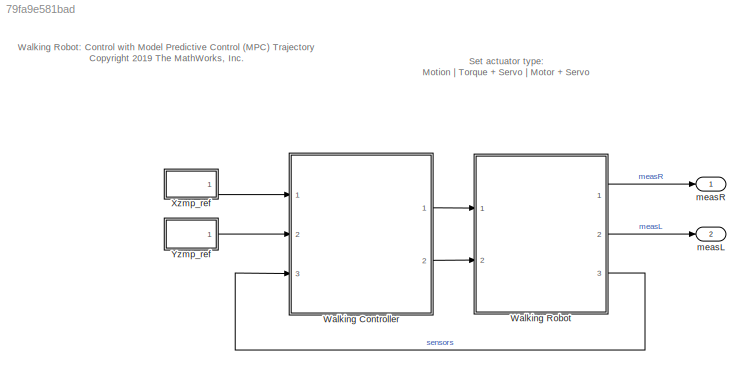
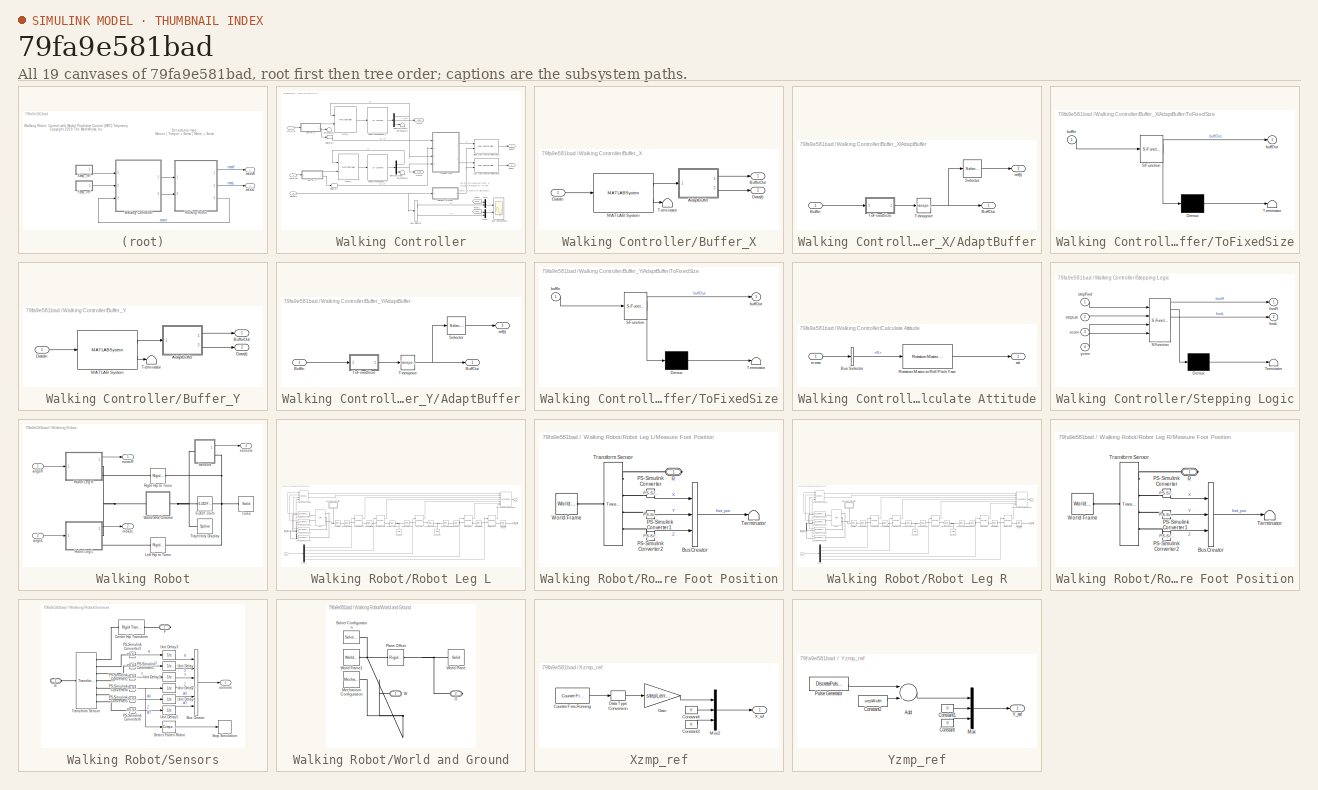
[diagram: thumbnail index - all 19 canvases of the model, root first then tree order]
MODEL slx_79fa9e581bad
KIND model
CONFIG AbsTol = auto
CONFIG EnableMultiTasking = on
CONFIG FixedStep = auto
CONFIG MaxStep = auto
CONFIG MinStep = auto
CONFIG PreLoadFcn = robotParameters3D\ndesignMPCWalkingPatternGen\n
CONFIG RelTol = 1e-2
CONFIG SampleTimeConstraint = Unconstrained
CONFIG Solver = ode15s
CONFIG SolverName = ode15s
CONFIG StartTime = 0.0
CONFIG StopTime = 15
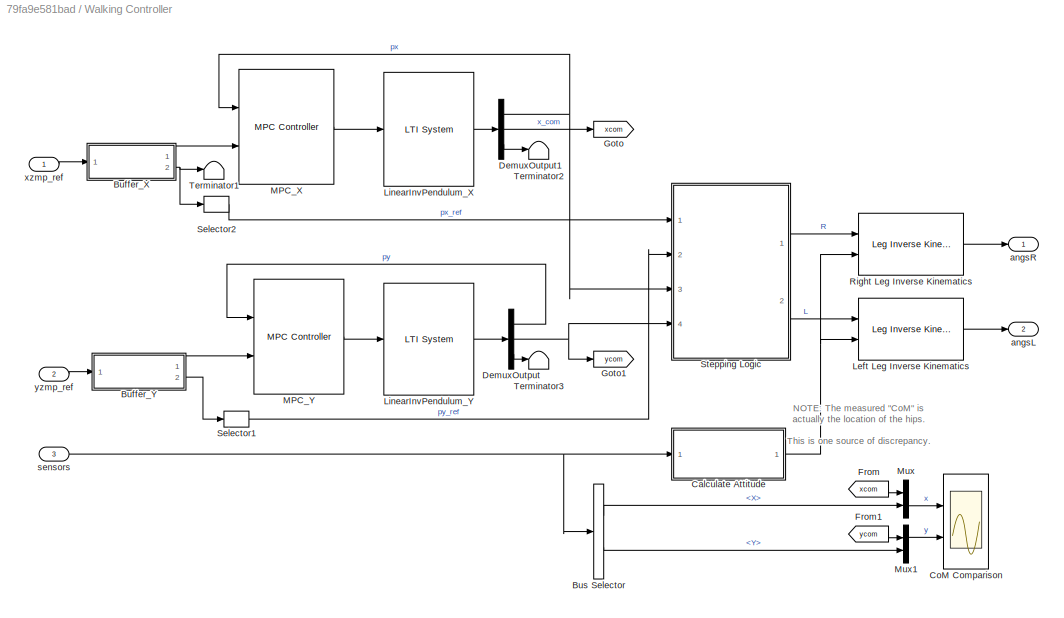
BLOCK [SubSystem] Walking Controller
  Ports = [3, 2]
  RequestExecContextInheritance = off
BLOCK [SubSystem] Walking Controller/Buffer_X
  Ports = [1, 2]
  RequestExecContextInheritance = off
BLOCK [SubSystem] Walking Controller/Buffer_X/AdaptBuffer
  Ports = [1, 2]
  RequestExecContextInheritance = off
BLOCK [Inport] Walking Controller/Buffer_X/AdaptBuffer/BuffIn
  IconDisplay = Port number
BLOCK [Outport] Walking Controller/Buffer_X/AdaptBuffer/BuffOut
  IconDisplay = Port number
BLOCK [Selector] Walking Controller/Buffer_X/AdaptBuffer/Selector
  IndexOptions = Index vector (dialog),Select all
  Indices = [1],1
  InputPortWidth = 3
  NumberOfDimensions = 2
  OutputSizes = 1,1
  Ports = [1, 1]
BLOCK [SubSystem] Walking Controller/Buffer_X/AdaptBuffer/ToFixedSize
  ErrorFcn = Stateflow.Translate.translate
  PermitHierarchicalResolution = ExplicitOnly
  Ports = [1, 1]
  RequestExecContextInheritance = off
  SFBlockType = MATLAB Function
  TreatAsAtomicUnit = on
BLOCK [Demux] Walking Controller/Buffer_X/AdaptBuffer/ToFixedSize/ Demux 
  Outputs = 1
  Ports = [1, 1]
BLOCK [S-Function] Walking Controller/Buffer_X/AdaptBuffer/ToFixedSize/ SFunction 
  EnableBusSupport = off
  FunctionName = sf_sfun
  Parameters = numStates,predictionHorizon
  PortCounts = [1 2]
  Ports = [1, 2]
  SFcnIsStateOwnerBlock = off
  SFunctionDeploymentMode = off
  Tag = Stateflow S-Function walkingRobot3DMPC 1
BLOCK [Terminator] Walking Controller/Buffer_X/AdaptBuffer/ToFixedSize/ Terminator 
BLOCK [Inport] Walking Controller/Buffer_X/AdaptBuffer/ToFixedSize/buffIn
  IconDisplay = Port number
BLOCK [Outport] Walking Controller/Buffer_X/AdaptBuffer/ToFixedSize/buffOut
  IconDisplay = Port number
BLOCK [Math] Walking Controller/Buffer_X/AdaptBuffer/Transpose
  Operator = transpose
  Ports = [1, 1]
BLOCK [Outport] Walking Controller/Buffer_X/AdaptBuffer/ref(t)
  IconDisplay = Port number
  Port = 2
BLOCK [Outport] Walking Controller/Buffer_X/BufferOut
  IconDisplay = Port number
BLOCK [Outport] Walking Controller/Buffer_X/Data(t)
  IconDisplay = Port number
  Port = 2
BLOCK [Inport] Walking Controller/Buffer_X/DataIn
  IconDisplay = Port number
BLOCK [MATLABSystem] Walking Controller/Buffer_X/MATLAB System
  BufferStartupFillupData = zeros(numOutputs,predictionHorizon)
  Capacity = predictionHorizon
  FillBufferAtStartup = on
  MaskDisplay = disp('FIFOBuffer');\nport_label('input',1,'dataIn');\nport_label('output',1,'buffer');\nport_label('output',2,'isFull');
  MaskType = FIFOBuffer
  NumStates = numOutputs
  Ports = [1, 2]
  SampleTime = Ts
  SimulateUsing = Code generation
  System = FIFOBuffer
BLOCK [Terminator] Walking Controller/Buffer_X/Terminator
BLOCK [SubSystem] Walking Controller/Buffer_Y
  Ports = [1, 2]
  RequestExecContextInheritance = off
BLOCK [SubSystem] Walking Controller/Buffer_Y/AdaptBuffer
  Ports = [1, 2]
  RequestExecContextInheritance = off
BLOCK [Inport] Walking Controller/Buffer_Y/AdaptBuffer/BuffIn
  IconDisplay = Port number
BLOCK [Outport] Walking Controller/Buffer_Y/AdaptBuffer/BuffOut
  IconDisplay = Port number
BLOCK [Selector] Walking Controller/Buffer_Y/AdaptBuffer/Selector
  IndexOptions = Index vector (dialog),Select all
  Indices = [1],1
  InputPortWidth = 3
  NumberOfDimensions = 2
  OutputSizes = 1,1
  Ports = [1, 1]
BLOCK [SubSystem] Walking Controller/Buffer_Y/AdaptBuffer/ToFixedSize
  ErrorFcn = Stateflow.Translate.translate
  PermitHierarchicalResolution = ExplicitOnly
  Ports = [1, 1]
  RequestExecContextInheritance = off
  SFBlockType = MATLAB Function
  TreatAsAtomicUnit = on
BLOCK [Demux] Walking Controller/Buffer_Y/AdaptBuffer/ToFixedSize/ Demux 
  Outputs = 1
  Ports = [1, 1]
BLOCK [S-Function] Walking Controller/Buffer_Y/AdaptBuffer/ToFixedSize/ SFunction 
  EnableBusSupport = off
  FunctionName = sf_sfun
  Parameters = numStates,predictionHorizon
  PortCounts = [1 2]
  Ports = [1, 2]
  SFcnIsStateOwnerBlock = off
  SFunctionDeploymentMode = off
  Tag = Stateflow S-Function walkingRobot3DMPC 2
BLOCK [Terminator] Walking Controller/Buffer_Y/AdaptBuffer/ToFixedSize/ Terminator 
BLOCK [Inport] Walking Controller/Buffer_Y/AdaptBuffer/ToFixedSize/buffIn
  IconDisplay = Port number
BLOCK [Outport] Walking Controller/Buffer_Y/AdaptBuffer/ToFixedSize/buffOut
  IconDisplay = Port number
BLOCK [Math] Walking Controller/Buffer_Y/AdaptBuffer/Transpose
  Operator = transpose
  Ports = [1, 1]
BLOCK [Outport] Walking Controller/Buffer_Y/AdaptBuffer/ref(t)
  IconDisplay = Port number
  Port = 2
BLOCK [Outport] Walking Controller/Buffer_Y/BufferOut
  IconDisplay = Port number
BLOCK [Outport] Walking Controller/Buffer_Y/Data(t)
  IconDisplay = Port number
  Port = 2
BLOCK [Inport] Walking Controller/Buffer_Y/DataIn
  IconDisplay = Port number
BLOCK [MATLABSystem] Walking Controller/Buffer_Y/MATLAB System
  BufferStartupFillupData = zeros(numOutputs,predictionHorizon)
  Capacity = predictionHorizon
  FillBufferAtStartup = on
  MaskDisplay = disp('FIFOBuffer');\nport_label('input',1,'dataIn');\nport_label('output',1,'buffer');\nport_label('output',2,'isFull');
  MaskType = FIFOBuffer
  NumStates = numOutputs
  Ports = [1, 2]
  SampleTime = Ts
  SimulateUsing = Code generation
  System = FIFOBuffer
BLOCK [Terminator] Walking Controller/Buffer_Y/Terminator
BLOCK [BusSelector] Walking Controller/Bus Selector
  OutputAsBus = off
  OutputSignals = X,Y
  Ports = [1, 2]
BLOCK [SubSystem] Walking Controller/Calculate Attitude
  Ports = [1, 1]
  RequestExecContextInheritance = off
BLOCK [BusSelector] Walking Controller/Calculate Attitude/Bus Selector
  OutputAsBus = off
  OutputSignals = R
  Ports = [1, 1]
BLOCK [Reference] Walking Controller/Calculate Attitude/Rotation Matrix to Roll Pitch Yaw  REF=walkingRobotUtils/Rotation Matrix to 
Roll Pitch Yaw
  Ports = [1, 1]
  SourceBlock = walkingRobotUtils/Rotation Matrix to \nRoll Pitch Yaw
  SourceProductBaseCode = SL
  SourceProductName = Simulink
  SourceType = SubSystem
BLOCK [Outport] Walking Controller/Calculate Attitude/att
  IconDisplay = Port number
BLOCK [Inport] Walking Controller/Calculate Attitude/meas
  IconDisplay = Port number
BLOCK [Scope] Walking Controller/CoM Comparison
  Floating = off
  NumInputPorts = 2
  Ports = [2]
  ScopeSpecificationString = Simulink.scopes.TimeScopeBlockCfg('CurrentConfiguration', extmgr.ConfigurationSet(extmgr.Configuration('Core','General UI',true),extmgr.Configuration('Core','Source UI',true),extmgr.Configuration('Sources','WiredSimulink',true,'DataLoggingVariableName','ScopeData1'),extmgr.Configuration('Visuals','Time Domain',true,'SerializedDisplays',{struct('MinYLimReal','-0.14686','MaxYLimReal','1.28409','YLab...<+2112ch>
BLOCK [Demux] Walking Controller/DemuxOutput
  DisplayOption = bar
  Outputs = 3
  Ports = [1, 3]
BLOCK [Demux] Walking Controller/DemuxOutput1
  DisplayOption = bar
  Outputs = 3
  Ports = [1, 3]
BLOCK [From] Walking Controller/From
  GotoTag = xcom
BLOCK [From] Walking Controller/From1
  GotoTag = ycom
BLOCK [Goto] Walking Controller/Goto
  GotoTag = xcom
BLOCK [Goto] Walking Controller/Goto1
  GotoTag = ycom
BLOCK [Reference] Walking Controller/Left Leg Inverse Kinematics  REF=walkingRobotUtils/Leg Inverse Kinematics
  Ports = [2, 1]
  SourceBlock = walkingRobotUtils/Leg Inverse Kinematics
  SourceType = SubSystem
BLOCK [Reference] Walking Controller/LinearInvPendulum_X  REF=cstblocks/LTI System
  Ports = [1, 1]
  SourceBlock = cstblocks/LTI System
  SourceProductBaseCode = CT
  SourceProductName = Control System Toolbox
  SourceType = LTI Block
BLOCK [Reference] Walking Controller/LinearInvPendulum_Y  REF=cstblocks/LTI System
  Ports = [1, 1]
  SourceBlock = cstblocks/LTI System
  SourceProductBaseCode = CT
  SourceProductName = Control System Toolbox
  SourceType = LTI Block
BLOCK [Reference] Walking Controller/MPC_X  REF=mpclib/MPC Controller  (lib defined in mdl_ae329e0e0455)
  Ports = [2, 1]
  SCDEnableBlockLinearizationSpecification = on
  SourceBlock = mpclib/MPC Controller
  SourceProductBaseCode = MP
  SourceProductName = Model Predictive Control Toolbox
  SourceType = MPC
BLOCK [Reference] Walking Controller/MPC_Y  REF=mpclib/MPC Controller  (lib defined in mdl_ae329e0e0455)
  Ports = [2, 1]
  SCDEnableBlockLinearizationSpecification = on
  SourceBlock = mpclib/MPC Controller
  SourceProductBaseCode = MP
  SourceProductName = Model Predictive Control Toolbox
  SourceType = MPC
BLOCK [Mux] Walking Controller/Mux
  DisplayOption = bar
  Inputs = 2
  Ports = [2, 1]
BLOCK [Mux] Walking Controller/Mux1
  DisplayOption = bar
  Inputs = 2
  Ports = [2, 1]
BLOCK [Reference] Walking Controller/Right Leg Inverse Kinematics  REF=walkingRobotUtils/Leg Inverse Kinematics
  Ports = [2, 1]
  SourceBlock = walkingRobotUtils/Leg Inverse Kinematics
  SourceType = SubSystem
BLOCK [Selector] Walking Controller/Selector1
  IndexOptions = Index vector (dialog)
  Indices = [1]
  InputPortWidth = 3
  OutputSizes = 1
  Ports = [1, 1]
BLOCK [Selector] Walking Controller/Selector2
  IndexOptions = Index vector (dialog)
  Indices = [1]
  InputPortWidth = 3
  OutputSizes = 1
  Ports = [1, 1]
BLOCK [SubSystem] Walking Controller/Stepping Logic
  ErrorFcn = Stateflow.Translate.translate
  PermitHierarchicalResolution = ExplicitOnly
  Ports = [4, 2]
  RequestExecContextInheritance = off
  SFBlockType = Chart
  TreatAsAtomicUnit = on
BLOCK [Demux] Walking Controller/Stepping Logic/ Demux 
  Outputs = 1
  Ports = [1, 1]
BLOCK [S-Function] Walking Controller/Stepping Logic/ SFunction 
  EnableBusSupport = off
  FunctionName = sf_sfun
  Parameters = h,stepTime,torso_y
  PortCounts = [4 3]
  Ports = [4, 3]
  SFcnIsStateOwnerBlock = off
  SFunctionDeploymentMode = off
  Tag = Stateflow S-Function walkingRobot3DMPC 3
BLOCK [Terminator] Walking Controller/Stepping Logic/ Terminator 
BLOCK [Outport] Walking Controller/Stepping Logic/footL
  IconDisplay = Port number
  Port = 2
BLOCK [Outport] Walking Controller/Stepping Logic/footR
  IconDisplay = Port number
BLOCK [Inport] Walking Controller/Stepping Logic/stepFwd
  IconDisplay = Port number
BLOCK [Inport] Walking Controller/Stepping Logic/stepLat
  IconDisplay = Port number
  Port = 2
BLOCK [Inport] Walking Controller/Stepping Logic/xcom
  IconDisplay = Port number
  Port = 3
BLOCK [Inport] Walking Controller/Stepping Logic/ycom
  IconDisplay = Port number
  Port = 4
BLOCK [Terminator] Walking Controller/Terminator1
BLOCK [Terminator] Walking Controller/Terminator2
BLOCK [Terminator] Walking Controller/Terminator3
BLOCK [Outport] Walking Controller/angsL
  IconDisplay = Port number
  Port = 2
BLOCK [Outport] Walking Controller/angsR
  IconDisplay = Port number
BLOCK [Inport] Walking Controller/sensors
  IconDisplay = Port number
  Port = 3
BLOCK [Inport] Walking Controller/xzmp_ref
  IconDisplay = Port number
BLOCK [Inport] Walking Controller/yzmp_ref
  IconDisplay = Port number
  Port = 2
BLOCK [SubSystem] Walking Robot
  Ports = [2, 3]
  RequestExecContextInheritance = off
BLOCK [Reference] Walking Robot/6-DOF Joint  REF=sm_lib/Joints/6-DOF Joint
  Ports = [0, 0, 0, 0, 0, 1, 1]
  SourceBlock = sm_lib/Joints/6-DOF Joint
  SourceProductBaseCode = MS
  SourceProductName = Simscape Multibody
  SourceType = 6-DOF Joint
BLOCK [Reference] Walking Robot/Left Hip to Torso  REF=sm_lib/Frames and
Transforms/Rigid
Transform
  Ports = [0, 0, 0, 0, 0, 1, 1]
  SourceBlock = sm_lib/Frames and\nTransforms/Rigid\nTransform
  SourceProductBaseCode = MS
  SourceProductName = Simscape Multibody
  SourceType = Rigid\nTransform
BLOCK [Reference] Walking Robot/Right Hip to Torso  REF=sm_lib/Frames and
Transforms/Rigid
Transform
  Ports = [0, 0, 0, 0, 0, 1, 1]
  SourceBlock = sm_lib/Frames and\nTransforms/Rigid\nTransform
  SourceProductBaseCode = MS
  SourceProductName = Simscape Multibody
  SourceType = Rigid\nTransform
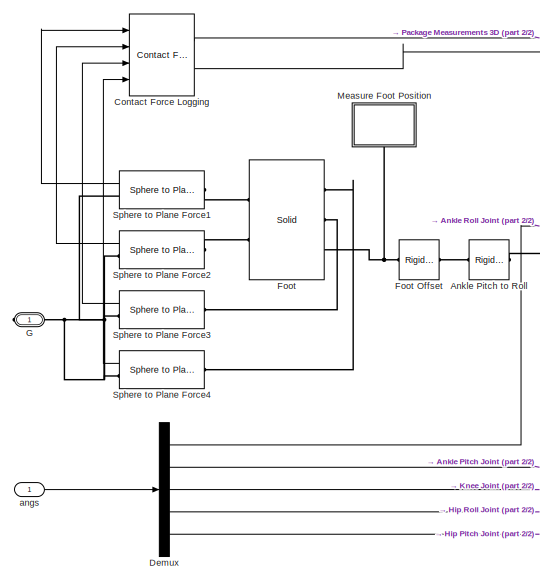
[diagram: Walking Robot/Robot Leg L - part 1/2, left side, full height]
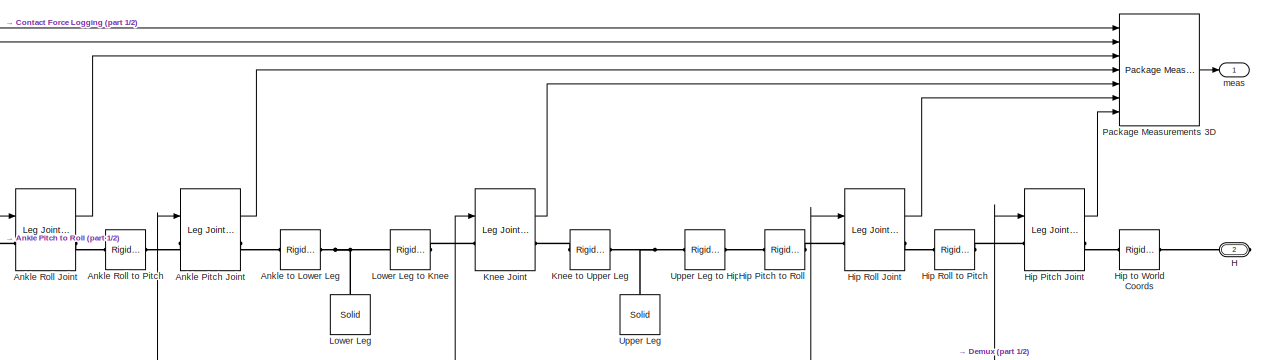
[diagram: Walking Robot/Robot Leg L - part 2/2, central region]
BLOCK [SubSystem] Walking Robot/Robot Leg L
  Ports = [1, 1, 0, 0, 0, 0, 2]
  RequestExecContextInheritance = off
BLOCK [Reference] Walking Robot/Robot Leg L/Ankle Pitch Joint  REF=walkingRobotUtils/Leg Joint Actuator
  Ports = [1, 1, 0, 0, 0, 1, 1]
  SourceBlock = walkingRobotUtils/Leg Joint Actuator
  SourceType = Leg Joint Actuator
BLOCK [Reference] Walking Robot/Robot Leg L/Ankle Pitch to Roll  REF=sm_lib/Frames and
Transforms/Rigid
Transform
  Ports = [0, 0, 0, 0, 0, 1, 1]
  SourceBlock = sm_lib/Frames and\nTransforms/Rigid\nTransform
  SourceProductBaseCode = MS
  SourceProductName = Simscape Multibody
  SourceType = Rigid\nTransform
BLOCK [Reference] Walking Robot/Robot Leg L/Ankle Roll Joint  REF=walkingRobotUtils/Leg Joint Actuator
  Ports = [1, 1, 0, 0, 0, 1, 1]
  SourceBlock = walkingRobotUtils/Leg Joint Actuator
  SourceType = Leg Joint Actuator
BLOCK [Reference] Walking Robot/Robot Leg L/Ankle Roll to Pitch  REF=sm_lib/Frames and
Transforms/Rigid
Transform
  Ports = [0, 0, 0, 0, 0, 1, 1]
  SourceBlock = sm_lib/Frames and\nTransforms/Rigid\nTransform
  SourceProductBaseCode = MS
  SourceProductName = Simscape Multibody
  SourceType = Rigid\nTransform
BLOCK [Reference] Walking Robot/Robot Leg L/Ankle to Lower Leg  REF=sm_lib/Frames and
Transforms/Rigid
Transform
  Ports = [0, 0, 0, 0, 0, 1, 1]
  SourceBlock = sm_lib/Frames and\nTransforms/Rigid\nTransform
  SourceProductBaseCode = MS
  SourceProductName = Simscape Multibody
  SourceType = Rigid\nTransform
BLOCK [Reference] Walking Robot/Robot Leg L/Contact Force Logging  REF=walkingRobotUtils/Contact Force Logging
  Ports = [4, 2]
  SourceBlock = walkingRobotUtils/Contact Force Logging
  SourceType = SubSystem
BLOCK [Demux] Walking Robot/Robot Leg L/Demux
  DisplayOption = bar
  Outputs = 5
  Ports = [1, 5]
BLOCK [Reference] Walking Robot/Robot Leg L/Foot  REF=sm_lib/Body Elements/Solid
  Ports = [0, 0, 0, 0, 0, 3, 2]
  SourceBlock = sm_lib/Body Elements/Solid
  SourceProductBaseCode = MS
  SourceProductName = Simscape Multibody
  SourceType = Solid
BLOCK [Reference] Walking Robot/Robot Leg L/Foot Offset  REF=sm_lib/Frames and
Transforms/Rigid
Transform
  Ports = [0, 0, 0, 0, 0, 1, 1]
  SourceBlock = sm_lib/Frames and\nTransforms/Rigid\nTransform
  SourceProductBaseCode = MS
  SourceProductName = Simscape Multibody
  SourceType = Rigid\nTransform
BLOCK [PMIOPort] Walking Robot/Robot Leg L/G
  Side = Right
BLOCK [PMIOPort] Walking Robot/Robot Leg L/H
  Port = 2
  Side = Right
BLOCK [Reference] Walking Robot/Robot Leg L/Hip Pitch Joint  REF=walkingRobotUtils/Leg Joint Actuator
  Ports = [1, 1, 0, 0, 0, 1, 1]
  SourceBlock = walkingRobotUtils/Leg Joint Actuator
  SourceType = Leg Joint Actuator
BLOCK [Reference] Walking Robot/Robot Leg L/Hip Pitch to Roll  REF=sm_lib/Frames and
Transforms/Rigid
Transform
  Ports = [0, 0, 0, 0, 0, 1, 1]
  SourceBlock = sm_lib/Frames and\nTransforms/Rigid\nTransform
  SourceProductBaseCode = MS
  SourceProductName = Simscape Multibody
  SourceType = Rigid\nTransform
BLOCK [Reference] Walking Robot/Robot Leg L/Hip Roll Joint  REF=walkingRobotUtils/Leg Joint Actuator
  Ports = [1, 1, 0, 0, 0, 1, 1]
  SourceBlock = walkingRobotUtils/Leg Joint Actuator
  SourceType = Leg Joint Actuator
BLOCK [Reference] Walking Robot/Robot Leg L/Hip Roll to Pitch  REF=sm_lib/Frames and
Transforms/Rigid
Transform
  Ports = [0, 0, 0, 0, 0, 1, 1]
  SourceBlock = sm_lib/Frames and\nTransforms/Rigid\nTransform
  SourceProductBaseCode = MS
  SourceProductName = Simscape Multibody
  SourceType = Rigid\nTransform
BLOCK [Reference] Walking Robot/Robot Leg L/Hip to World Coords  REF=sm_lib/Frames and
Transforms/Rigid
Transform
  Ports = [0, 0, 0, 0, 0, 1, 1]
  SourceBlock = sm_lib/Frames and\nTransforms/Rigid\nTransform
  SourceProductBaseCode = MS
  SourceProductName = Simscape Multibody
  SourceType = Rigid\nTransform
BLOCK [Reference] Walking Robot/Robot Leg L/Knee Joint  REF=walkingRobotUtils/Leg Joint Actuator
  Ports = [1, 1, 0, 0, 0, 1, 1]
  SourceBlock = walkingRobotUtils/Leg Joint Actuator
  SourceType = Leg Joint Actuator
BLOCK [Reference] Walking Robot/Robot Leg L/Knee to Upper Leg  REF=sm_lib/Frames and
Transforms/Rigid
Transform
  Ports = [0, 0, 0, 0, 0, 1, 1]
  SourceBlock = sm_lib/Frames and\nTransforms/Rigid\nTransform
  SourceProductBaseCode = MS
  SourceProductName = Simscape Multibody
  SourceType = Rigid\nTransform
BLOCK [Reference] Walking Robot/Robot Leg L/Lower Leg  REF=sm_lib/Body Elements/Solid
  Ports = [0, 0, 0, 0, 0, 0, 1]
  SourceBlock = sm_lib/Body Elements/Solid
  SourceProductBaseCode = MS
  SourceProductName = Simscape Multibody
  SourceType = Solid
BLOCK [Reference] Walking Robot/Robot Leg L/Lower Leg to Knee  REF=sm_lib/Frames and
Transforms/Rigid
Transform
  Ports = [0, 0, 0, 0, 0, 1, 1]
  SourceBlock = sm_lib/Frames and\nTransforms/Rigid\nTransform
  SourceProductBaseCode = MS
  SourceProductName = Simscape Multibody
  SourceType = Rigid\nTransform
BLOCK [SubSystem] Walking Robot/Robot Leg L/Measure Foot Position
  Ports = [0, 0, 0, 0, 0, 0, 1]
  RequestExecContextInheritance = off
BLOCK [BusCreator] Walking Robot/Robot Leg L/Measure Foot Position/Bus Creator
  DisplayOption = bar
  InheritFromInputs = on
  Inputs = 3
  Ports = [3, 1]
BLOCK [Reference] Walking Robot/Robot Leg L/Measure Foot Position/PS-Simulink Converter  REF=nesl_utility/PS-Simulink
Converter
  Ports = [0, 1, 0, 0, 0, 1]
  SourceBlock = nesl_utility/PS-Simulink\nConverter
  SourceProductBaseCode = SS
  SourceProductName = Simscape
  SourceType = PS-Simulink\nConverter
BLOCK [Reference] Walking Robot/Robot Leg L/Measure Foot Position/PS-Simulink Converter1  REF=nesl_utility/PS-Simulink
Converter
  Ports = [0, 1, 0, 0, 0, 1]
  SourceBlock = nesl_utility/PS-Simulink\nConverter
  SourceProductBaseCode = SS
  SourceProductName = Simscape
  SourceType = PS-Simulink\nConverter
BLOCK [Reference] Walking Robot/Robot Leg L/Measure Foot Position/PS-Simulink Converter2  REF=nesl_utility/PS-Simulink
Converter
  Ports = [0, 1, 0, 0, 0, 1]
  SourceBlock = nesl_utility/PS-Simulink\nConverter
  SourceProductBaseCode = SS
  SourceProductName = Simscape
  SourceType = PS-Simulink\nConverter
BLOCK [PMIOPort] Walking Robot/Robot Leg L/Measure Foot Position/R
  Side = Right
BLOCK [Terminator] Walking Robot/Robot Leg L/Measure Foot Position/Terminator
BLOCK [Reference] Walking Robot/Robot Leg L/Measure Foot Position/Transform Sensor  REF=sm_lib/Frames and
Transforms/Transform
Sensor
  Ports = [0, 0, 0, 0, 0, 1, 4]
  SourceBlock = sm_lib/Frames and\nTransforms/Transform\nSensor
  SourceProductBaseCode = MS
  SourceProductName = Simscape Multibody
  SourceType = Transform\nSensor
BLOCK [Reference] Walking Robot/Robot Leg L/Measure Foot Position/World Frame  REF=sm_lib/Frames and
Transforms/World Frame
  Ports = [0, 0, 0, 0, 0, 0, 1]
  SourceBlock = sm_lib/Frames and\nTransforms/World Frame
  SourceProductBaseCode = MS
  SourceProductName = Simscape Multibody
  SourceType = World Frame
BLOCK [Reference] Walking Robot/Robot Leg L/Package Measurements 3D  REF=walkingRobotUtils/Package
Measurements 3D
  Ports = [7, 1]
  SourceBlock = walkingRobotUtils/Package\nMeasurements 3D
  SourceType = SubSystem
BLOCK [Reference] Walking Robot/Robot Leg L/Sphere to Plane Force1  REF=Contact_Forces_Lib/3D/Sphere to Plane Force
  Ports = [0, 1, 0, 0, 0, 1, 1]
  SourceBlock = Contact_Forces_Lib/3D/Sphere to Plane Force
  SourceProductName = Simscape Multibody Contact Forces Library
  SourceType = Sphere to Plane Force
BLOCK [Reference] Walking Robot/Robot Leg L/Sphere to Plane Force2  REF=Contact_Forces_Lib/3D/Sphere to Plane Force
  Ports = [0, 1, 0, 0, 0, 1, 1]
  SourceBlock = Contact_Forces_Lib/3D/Sphere to Plane Force
  SourceProductName = Simscape Multibody Contact Forces Library
  SourceType = Sphere to Plane Force
BLOCK [Reference] Walking Robot/Robot Leg L/Sphere to Plane Force3  REF=Contact_Forces_Lib/3D/Sphere to Plane Force
  Ports = [0, 1, 0, 0, 0, 1, 1]
  SourceBlock = Contact_Forces_Lib/3D/Sphere to Plane Force
  SourceProductName = Simscape Multibody Contact Forces Library
  SourceType = Sphere to Plane Force
BLOCK [Reference] Walking Robot/Robot Leg L/Sphere to Plane Force4  REF=Contact_Forces_Lib/3D/Sphere to Plane Force
  Ports = [0, 1, 0, 0, 0, 1, 1]
  SourceBlock = Contact_Forces_Lib/3D/Sphere to Plane Force
  SourceProductName = Simscape Multibody Contact Forces Library
  SourceType = Sphere to Plane Force
BLOCK [Reference] Walking Robot/Robot Leg L/Upper Leg  REF=sm_lib/Body Elements/Solid
  Ports = [0, 0, 0, 0, 0, 0, 1]
  SourceBlock = sm_lib/Body Elements/Solid
  SourceProductBaseCode = MS
  SourceProductName = Simscape Multibody
  SourceType = Solid
BLOCK [Reference] Walking Robot/Robot Leg L/Upper Leg to Hip  REF=sm_lib/Frames and
Transforms/Rigid
Transform
  Ports = [0, 0, 0, 0, 0, 1, 1]
  SourceBlock = sm_lib/Frames and\nTransforms/Rigid\nTransform
  SourceProductBaseCode = MS
  SourceProductName = Simscape Multibody
  SourceType = Rigid\nTransform
BLOCK [Inport] Walking Robot/Robot Leg L/angs
  IconDisplay = Port number
BLOCK [Outport] Walking Robot/Robot Leg L/meas
  IconDisplay = Port number
BLOCK [SubSystem] Walking Robot/Robot Leg R
  Ports = [1, 1, 0, 0, 0, 0, 2]
  RequestExecContextInheritance = off
BLOCK [Reference] Walking Robot/Robot Leg R/Ankle Pitch Joint  REF=walkingRobotUtils/Leg Joint Actuator
  Ports = [1, 1, 0, 0, 0, 1, 1]
  SourceBlock = walkingRobotUtils/Leg Joint Actuator
  SourceType = Leg Joint Actuator
BLOCK [Reference] Walking Robot/Robot Leg R/Ankle Pitch to Roll  REF=sm_lib/Frames and
Transforms/Rigid
Transform
  Ports = [0, 0, 0, 0, 0, 1, 1]
  SourceBlock = sm_lib/Frames and\nTransforms/Rigid\nTransform
  SourceProductBaseCode = MS
  SourceProductName = Simscape Multibody
  SourceType = Rigid\nTransform
BLOCK [Reference] Walking Robot/Robot Leg R/Ankle Roll Joint  REF=walkingRobotUtils/Leg Joint Actuator
  Ports = [1, 1, 0, 0, 0, 1, 1]
  SourceBlock = walkingRobotUtils/Leg Joint Actuator
  SourceType = Leg Joint Actuator
BLOCK [Reference] Walking Robot/Robot Leg R/Ankle Roll to Pitch  REF=sm_lib/Frames and
Transforms/Rigid
Transform
  Ports = [0, 0, 0, 0, 0, 1, 1]
  SourceBlock = sm_lib/Frames and\nTransforms/Rigid\nTransform
  SourceProductBaseCode = MS
  SourceProductName = Simscape Multibody
  SourceType = Rigid\nTransform
BLOCK [Reference] Walking Robot/Robot Leg R/Ankle to Lower Leg  REF=sm_lib/Frames and
Transforms/Rigid
Transform
  Ports = [0, 0, 0, 0, 0, 1, 1]
  SourceBlock = sm_lib/Frames and\nTransforms/Rigid\nTransform
  SourceProductBaseCode = MS
  SourceProductName = Simscape Multibody
  SourceType = Rigid\nTransform
BLOCK [Reference] Walking Robot/Robot Leg R/Contact Force Logging  REF=walkingRobotUtils/Contact Force Logging
  Ports = [4, 2]
  SourceBlock = walkingRobotUtils/Contact Force Logging
  SourceType = SubSystem
BLOCK [Demux] Walking Robot/Robot Leg R/Demux
  DisplayOption = bar
  Outputs = 5
  Ports = [1, 5]
BLOCK [Reference] Walking Robot/Robot Leg R/Foot  REF=sm_lib/Body Elements/Solid
  Ports = [0, 0, 0, 0, 0, 3, 2]
  SourceBlock = sm_lib/Body Elements/Solid
  SourceProductBaseCode = MS
  SourceProductName = Simscape Multibody
  SourceType = Solid
BLOCK [Reference] Walking Robot/Robot Leg R/Foot Offset  REF=sm_lib/Frames and
Transforms/Rigid
Transform
  Ports = [0, 0, 0, 0, 0, 1, 1]
  SourceBlock = sm_lib/Frames and\nTransforms/Rigid\nTransform
  SourceProductBaseCode = MS
  SourceProductName = Simscape Multibody
  SourceType = Rigid\nTransform
BLOCK [PMIOPort] Walking Robot/Robot Leg R/G
  Side = Right
BLOCK [PMIOPort] Walking Robot/Robot Leg R/H
  Port = 2
  Side = Right
BLOCK [Reference] Walking Robot/Robot Leg R/Hip Pitch Joint  REF=walkingRobotUtils/Leg Joint Actuator
  Ports = [1, 1, 0, 0, 0, 1, 1]
  SourceBlock = walkingRobotUtils/Leg Joint Actuator
  SourceType = Leg Joint Actuator
BLOCK [Reference] Walking Robot/Robot Leg R/Hip Pitch to Roll  REF=sm_lib/Frames and
Transforms/Rigid
Transform
  Ports = [0, 0, 0, 0, 0, 1, 1]
  SourceBlock = sm_lib/Frames and\nTransforms/Rigid\nTransform
  SourceProductBaseCode = MS
  SourceProductName = Simscape Multibody
  SourceType = Rigid\nTransform
BLOCK [Reference] Walking Robot/Robot Leg R/Hip Roll Joint  REF=walkingRobotUtils/Leg Joint Actuator
  Ports = [1, 1, 0, 0, 0, 1, 1]
  SourceBlock = walkingRobotUtils/Leg Joint Actuator
  SourceType = Leg Joint Actuator
BLOCK [Reference] Walking Robot/Robot Leg R/Hip Roll to Pitch  REF=sm_lib/Frames and
Transforms/Rigid
Transform
  Ports = [0, 0, 0, 0, 0, 1, 1]
  SourceBlock = sm_lib/Frames and\nTransforms/Rigid\nTransform
  SourceProductBaseCode = MS
  SourceProductName = Simscape Multibody
  SourceType = Rigid\nTransform
BLOCK [Reference] Walking Robot/Robot Leg R/Hip to World Coords  REF=sm_lib/Frames and
Transforms/Rigid
Transform
  Ports = [0, 0, 0, 0, 0, 1, 1]
  SourceBlock = sm_lib/Frames and\nTransforms/Rigid\nTransform
  SourceProductBaseCode = MS
  SourceProductName = Simscape Multibody
  SourceType = Rigid\nTransform
BLOCK [Reference] Walking Robot/Robot Leg R/Knee Joint  REF=walkingRobotUtils/Leg Joint Actuator
  Ports = [1, 1, 0, 0, 0, 1, 1]
  SourceBlock = walkingRobotUtils/Leg Joint Actuator
  SourceType = Leg Joint Actuator
BLOCK [Reference] Walking Robot/Robot Leg R/Knee to Upper Leg  REF=sm_lib/Frames and
Transforms/Rigid
Transform
  Ports = [0, 0, 0, 0, 0, 1, 1]
  SourceBlock = sm_lib/Frames and\nTransforms/Rigid\nTransform
  SourceProductBaseCode = MS
  SourceProductName = Simscape Multibody
  SourceType = Rigid\nTransform
BLOCK [Reference] Walking Robot/Robot Leg R/Lower Leg  REF=sm_lib/Body Elements/Solid
  Ports = [0, 0, 0, 0, 0, 0, 1]
  SourceBlock = sm_lib/Body Elements/Solid
  SourceProductBaseCode = MS
  SourceProductName = Simscape Multibody
  SourceType = Solid
BLOCK [Reference] Walking Robot/Robot Leg R/Lower Leg to Knee  REF=sm_lib/Frames and
Transforms/Rigid
Transform
  Ports = [0, 0, 0, 0, 0, 1, 1]
  SourceBlock = sm_lib/Frames and\nTransforms/Rigid\nTransform
  SourceProductBaseCode = MS
  SourceProductName = Simscape Multibody
  SourceType = Rigid\nTransform
BLOCK [SubSystem] Walking Robot/Robot Leg R/Measure Foot Position
  Ports = [0, 0, 0, 0, 0, 0, 1]
  RequestExecContextInheritance = off
BLOCK [BusCreator] Walking Robot/Robot Leg R/Measure Foot Position/Bus Creator
  DisplayOption = bar
  InheritFromInputs = on
  Inputs = 3
  Ports = [3, 1]
BLOCK [Reference] Walking Robot/Robot Leg R/Measure Foot Position/PS-Simulink Converter  REF=nesl_utility/PS-Simulink
Converter
  Ports = [0, 1, 0, 0, 0, 1]
  SourceBlock = nesl_utility/PS-Simulink\nConverter
  SourceProductBaseCode = SS
  SourceProductName = Simscape
  SourceType = PS-Simulink\nConverter
BLOCK [Reference] Walking Robot/Robot Leg R/Measure Foot Position/PS-Simulink Converter1  REF=nesl_utility/PS-Simulink
Converter
  Ports = [0, 1, 0, 0, 0, 1]
  SourceBlock = nesl_utility/PS-Simulink\nConverter
  SourceProductBaseCode = SS
  SourceProductName = Simscape
  SourceType = PS-Simulink\nConverter
BLOCK [Reference] Walking Robot/Robot Leg R/Measure Foot Position/PS-Simulink Converter2  REF=nesl_utility/PS-Simulink
Converter
  Ports = [0, 1, 0, 0, 0, 1]
  SourceBlock = nesl_utility/PS-Simulink\nConverter
  SourceProductBaseCode = SS
  SourceProductName = Simscape
  SourceType = PS-Simulink\nConverter
BLOCK [PMIOPort] Walking Robot/Robot Leg R/Measure Foot Position/R
  Side = Right
BLOCK [Terminator] Walking Robot/Robot Leg R/Measure Foot Position/Terminator
BLOCK [Reference] Walking Robot/Robot Leg R/Measure Foot Position/Transform Sensor  REF=sm_lib/Frames and
Transforms/Transform
Sensor
  Ports = [0, 0, 0, 0, 0, 1, 4]
  SourceBlock = sm_lib/Frames and\nTransforms/Transform\nSensor
  SourceProductBaseCode = MS
  SourceProductName = Simscape Multibody
  SourceType = Transform\nSensor
BLOCK [Reference] Walking Robot/Robot Leg R/Measure Foot Position/World Frame  REF=sm_lib/Frames and
Transforms/World Frame
  Ports = [0, 0, 0, 0, 0, 0, 1]
  SourceBlock = sm_lib/Frames and\nTransforms/World Frame
  SourceProductBaseCode = MS
  SourceProductName = Simscape Multibody
  SourceType = World Frame
BLOCK [Reference] Walking Robot/Robot Leg R/Package Measurements 3D  REF=walkingRobotUtils/Package
Measurements 3D
  Ports = [7, 1]
  SourceBlock = walkingRobotUtils/Package\nMeasurements 3D
  SourceType = SubSystem
BLOCK [Reference] Walking Robot/Robot Leg R/Sphere to Plane Force1  REF=Contact_Forces_Lib/3D/Sphere to Plane Force
  Ports = [0, 1, 0, 0, 0, 1, 1]
  SourceBlock = Contact_Forces_Lib/3D/Sphere to Plane Force
  SourceProductName = Simscape Multibody Contact Forces Library
  SourceType = Sphere to Plane Force
BLOCK [Reference] Walking Robot/Robot Leg R/Sphere to Plane Force2  REF=Contact_Forces_Lib/3D/Sphere to Plane Force
  Ports = [0, 1, 0, 0, 0, 1, 1]
  SourceBlock = Contact_Forces_Lib/3D/Sphere to Plane Force
  SourceProductName = Simscape Multibody Contact Forces Library
  SourceType = Sphere to Plane Force
BLOCK [Reference] Walking Robot/Robot Leg R/Sphere to Plane Force3  REF=Contact_Forces_Lib/3D/Sphere to Plane Force
  Ports = [0, 1, 0, 0, 0, 1, 1]
  SourceBlock = Contact_Forces_Lib/3D/Sphere to Plane Force
  SourceProductName = Simscape Multibody Contact Forces Library
  SourceType = Sphere to Plane Force
BLOCK [Reference] Walking Robot/Robot Leg R/Sphere to Plane Force4  REF=Contact_Forces_Lib/3D/Sphere to Plane Force
  Ports = [0, 1, 0, 0, 0, 1, 1]
  SourceBlock = Contact_Forces_Lib/3D/Sphere to Plane Force
  SourceProductName = Simscape Multibody Contact Forces Library
  SourceType = Sphere to Plane Force
BLOCK [Reference] Walking Robot/Robot Leg R/Upper Leg  REF=sm_lib/Body Elements/Solid
  Ports = [0, 0, 0, 0, 0, 0, 1]
  SourceBlock = sm_lib/Body Elements/Solid
  SourceProductBaseCode = MS
  SourceProductName = Simscape Multibody
  SourceType = Solid
BLOCK [Reference] Walking Robot/Robot Leg R/Upper Leg to Hip  REF=sm_lib/Frames and
Transforms/Rigid
Transform
  Ports = [0, 0, 0, 0, 0, 1, 1]
  SourceBlock = sm_lib/Frames and\nTransforms/Rigid\nTransform
  SourceProductBaseCode = MS
  SourceProductName = Simscape Multibody
  SourceType = Rigid\nTransform
BLOCK [Inport] Walking Robot/Robot Leg R/angs
  IconDisplay = Port number
BLOCK [Outport] Walking Robot/Robot Leg R/meas
  IconDisplay = Port number
BLOCK [SubSystem] Walking Robot/Sensors
  Ports = [0, 1, 0, 0, 0, 1, 1]
  RequestExecContextInheritance = off
BLOCK [PMIOPort] Walking Robot/Sensors/B
  Port = 2
  Side = Left
BLOCK [BusCreator] Walking Robot/Sensors/Bus Creator
  DisplayOption = bar
  InheritFromInputs = on
  Inputs = 6
  Ports = [6, 1]
BLOCK [Reference] Walking Robot/Sensors/Center Hip Transform  REF=sm_lib/Frames and
Transforms/Rigid
Transform
  Ports = [0, 0, 0, 0, 0, 1, 1]
  SourceBlock = sm_lib/Frames and\nTransforms/Rigid\nTransform
  SourceProductBaseCode = MS
  SourceProductName = Simscape Multibody
  SourceType = Rigid\nTransform
BLOCK [Reference] Walking Robot/Sensors/Detect Fallen Robot  REF=simulink/Logic and Bit
Operations/Compare
To Constant
  Ports = [1, 1]
  SourceBlock = simulink/Logic and Bit\nOperations/Compare\nTo Constant
  SourceProductBaseCode = SL
  SourceProductName = Simulink
  SourceType = Compare To Constant
BLOCK [PMIOPort] Walking Robot/Sensors/F
  Side = Right
BLOCK [Reference] Walking Robot/Sensors/PS-Simulink Converter1  REF=nesl_utility/PS-Simulink
Converter
  Ports = [0, 1, 0, 0, 0, 1]
  SourceBlock = nesl_utility/PS-Simulink\nConverter
  SourceProductBaseCode = SS
  SourceProductName = Simscape
  SourceType = PS-Simulink\nConverter
BLOCK [Reference] Walking Robot/Sensors/PS-Simulink Converter2  REF=nesl_utility/PS-Simulink
Converter
  Ports = [0, 1, 0, 0, 0, 1]
  SourceBlock = nesl_utility/PS-Simulink\nConverter
  SourceProductBaseCode = SS
  SourceProductName = Simscape
  SourceType = PS-Simulink\nConverter
BLOCK [Reference] Walking Robot/Sensors/PS-Simulink Converter3  REF=nesl_utility/PS-Simulink
Converter
  Ports = [0, 1, 0, 0, 0, 1]
  SourceBlock = nesl_utility/PS-Simulink\nConverter
  SourceProductBaseCode = SS
  SourceProductName = Simscape
  SourceType = PS-Simulink\nConverter
BLOCK [Reference] Walking Robot/Sensors/PS-Simulink Converter4  REF=nesl_utility/PS-Simulink
Converter
  Ports = [0, 1, 0, 0, 0, 1]
  SourceBlock = nesl_utility/PS-Simulink\nConverter
  SourceProductBaseCode = SS
  SourceProductName = Simscape
  SourceType = PS-Simulink\nConverter
BLOCK [Reference] Walking Robot/Sensors/PS-Simulink Converter5  REF=nesl_utility/PS-Simulink
Converter
  Ports = [0, 1, 0, 0, 0, 1]
  SourceBlock = nesl_utility/PS-Simulink\nConverter
  SourceProductBaseCode = SS
  SourceProductName = Simscape
  SourceType = PS-Simulink\nConverter
BLOCK [Reference] Walking Robot/Sensors/PS-Simulink Converter6  REF=nesl_utility/PS-Simulink
Converter
  Ports = [0, 1, 0, 0, 0, 1]
  SourceBlock = nesl_utility/PS-Simulink\nConverter
  SourceProductBaseCode = SS
  SourceProductName = Simscape
  SourceType = PS-Simulink\nConverter
BLOCK [Stop] Walking Robot/Sensors/Stop Simulation
BLOCK [Reference] Walking Robot/Sensors/Transform Sensor  REF=sm_lib/Frames and
Transforms/Transform
Sensor
  Ports = [0, 0, 0, 0, 0, 1, 7]
  SourceBlock = sm_lib/Frames and\nTransforms/Transform\nSensor
  SourceProductBaseCode = MS
  SourceProductName = Simscape Multibody
  SourceType = Transform\nSensor
BLOCK [UnitDelay] Walking Robot/Sensors/Unit Delay
  HasFrameUpgradeWarning = on
  SampleTime = -1
BLOCK [UnitDelay] Walking Robot/Sensors/Unit Delay1
  HasFrameUpgradeWarning = on
  SampleTime = -1
BLOCK [UnitDelay] Walking Robot/Sensors/Unit Delay2
  HasFrameUpgradeWarning = on
  InitialCondition = init_height/100
  SampleTime = -1
BLOCK [UnitDelay] Walking Robot/Sensors/Unit Delay3
  HasFrameUpgradeWarning = on
  InitialCondition = eye(3)
  SampleTime = -1
BLOCK [UnitDelay] Walking Robot/Sensors/Unit Delay4
  HasFrameUpgradeWarning = on
  SampleTime = -1
BLOCK [UnitDelay] Walking Robot/Sensors/Unit Delay5
  HasFrameUpgradeWarning = on
  SampleTime = -1
BLOCK [Outport] Walking Robot/Sensors/sensors
  IconDisplay = Port number
BLOCK [Reference] Walking Robot/Torso  REF=sm_lib/Body Elements/Solid
  Ports = [0, 0, 0, 0, 0, 0, 1]
  SourceBlock = sm_lib/Body Elements/Solid
  SourceProductBaseCode = MS
  SourceProductName = Simscape Multibody
  SourceType = Solid
BLOCK [Reference] Walking Robot/Trajectory Display  REF=sm_lib/Curves and Surfaces/Spline
  Ports = [0, 0, 0, 0, 0, 1, 1]
  SourceBlock = sm_lib/Curves and Surfaces/Spline
  SourceProductBaseCode = MS
  SourceProductName = Simscape Multibody
  SourceType = Spline
BLOCK [SubSystem] Walking Robot/World and Ground
  Ports = [0, 0, 0, 0, 0, 1, 1]
  RequestExecContextInheritance = off
BLOCK [PMIOPort] Walking Robot/World and Ground/G
  Port = 2
  Side = Right
BLOCK [Reference] Walking Robot/World and Ground/Mechanism Configuration  REF=sm_lib/Utilities/Mechanism
Configuration
  Ports = [0, 0, 0, 0, 0, 0, 1]
  SourceBlock = sm_lib/Utilities/Mechanism\nConfiguration
  SourceProductBaseCode = MS
  SourceProductName = Simscape Multibody
  SourceType = Mechanism\nConfiguration
BLOCK [Reference] Walking Robot/World and Ground/Plane Offset  REF=sm_lib/Frames and
Transforms/Rigid
Transform
  Ports = [0, 0, 0, 0, 0, 1, 1]
  SourceBlock = sm_lib/Frames and\nTransforms/Rigid\nTransform
  SourceProductBaseCode = MS
  SourceProductName = Simscape Multibody
  SourceType = Rigid\nTransform
BLOCK [Reference] Walking Robot/World and Ground/Solver Configuration  REF=nesl_utility/Solver
Configuration
  Ports = [0, 0, 0, 0, 0, 0, 1]
  SourceBlock = nesl_utility/Solver\nConfiguration
  SourceProductBaseCode = SS
  SourceProductName = Simscape
  SourceType = Solver\nConfiguration
BLOCK [PMIOPort] Walking Robot/World and Ground/W
  Side = Left
BLOCK [Reference] Walking Robot/World and Ground/World Frame1  REF=sm_lib/Frames and
Transforms/World Frame
  Ports = [0, 0, 0, 0, 0, 0, 1]
  SourceBlock = sm_lib/Frames and\nTransforms/World Frame
  SourceProductBaseCode = MS
  SourceProductName = Simscape Multibody
  SourceType = World Frame
BLOCK [Reference] Walking Robot/World and Ground/World Plane  REF=sm_lib/Body Elements/Solid
  Ports = [0, 0, 0, 0, 0, 0, 1]
  SourceBlock = sm_lib/Body Elements/Solid
  SourceProductBaseCode = MS
  SourceProductName = Simscape Multibody
  SourceType = Solid
BLOCK [Inport] Walking Robot/angsL
  IconDisplay = Port number
  Port = 2
BLOCK [Inport] Walking Robot/angsR
  IconDisplay = Port number
BLOCK [Outport] Walking Robot/measL
  IconDisplay = Port number
  Port = 2
BLOCK [Outport] Walking Robot/measR
  IconDisplay = Port number
BLOCK [Outport] Walking Robot/sensors
  IconDisplay = Port number
  Port = 3
BLOCK [SubSystem] Xzmp_ref
  Ports = [0, 1]
  RequestExecContextInheritance = off
BLOCK [Constant] Xzmp_ref/Constant3
  SampleTime = Ts
  Value = 0
BLOCK [Constant] Xzmp_ref/Constant4
  SampleTime = Ts
  Value = 0
BLOCK [Reference] Xzmp_ref/Counter Free-Running  REF=simulink/Sources/Counter
Free-Running
  Ports = [0, 1]
  SourceBlock = simulink/Sources/Counter\nFree-Running
  SourceProductBaseCode = SL
  SourceProductName = Simulink
  SourceType = Counter Free-Running
BLOCK [DataTypeConversion] Xzmp_ref/Data Type Conversion
  OutDataTypeStr = double
  RndMeth = Floor
  SaturateOnIntegerOverflow = off
BLOCK [Gain] Xzmp_ref/Gain
  Gain = stepLength
  OutDataTypeStr = Inherit: Inherit via internal rule
  ParamDataTypeStr = Inherit: Inherit via internal rule
  SaturateOnIntegerOverflow = off
BLOCK [Mux] Xzmp_ref/Mux2
  DisplayOption = bar
  Inputs = 3
  Ports = [3, 1]
BLOCK [Outport] Xzmp_ref/X_ref
  IconDisplay = Port number
BLOCK [SubSystem] Yzmp_ref
  Ports = [0, 1]
  RequestExecContextInheritance = off
BLOCK [Sum] Yzmp_ref/Add
  InputSameDT = off
  Inputs = +-
  OutDataTypeStr = Inherit: Inherit via internal rule
  Ports = [2, 1]
  SaturateOnIntegerOverflow = off
BLOCK [Constant] Yzmp_ref/Constant
  SampleTime = Ts
  Value = 0
BLOCK [Constant] Yzmp_ref/Constant1
  SampleTime = Ts
  Value = 0
BLOCK [Constant] Yzmp_ref/Constant2
  SampleTime = Ts
  Value = stepWidth
BLOCK [Mux] Yzmp_ref/Mux
  DisplayOption = bar
  Inputs = 3
  Ports = [3, 1]
BLOCK [DiscretePulseGenerator] Yzmp_ref/Pulse Generator
  Amplitude = 2*stepWidth
  Period = 2*stepTime
  Ports = [0, 1]
  PulseType = Time based
  PulseWidth = 50
BLOCK [Outport] Yzmp_ref/Y_ref
  IconDisplay = Port number
BLOCK [Outport] measL
  IconDisplay = Port number
  Port = 2
BLOCK [Outport] measR
  IconDisplay = Port number
ANNOTATION (root): Set actuator type: Motion | Torque + Servo | Motor + Servo
ANNOTATION (root): Walking Robot: Control with Model Predictive Control (MPC) Trajectory <copyright redacted>
ANNOTATION Walking Controller: NOTE: The measured "CoM" is actually the location of the hips. This is one source of discrepancy.
LINE Walking Controller/Buffer_X/AdaptBuffer/BuffIn:1 -> Walking Controller/Buffer_X/AdaptBuffer/ToFixedSize:1
LINE Walking Controller/Buffer_X/AdaptBuffer/Selector:1 -> Walking Controller/Buffer_X/AdaptBuffer/ref(t):1
LINE Walking Controller/Buffer_X/AdaptBuffer/ToFixedSize:1 -> Walking Controller/Buffer_X/AdaptBuffer/Transpose:1
NET Walking Controller/Buffer_X/AdaptBuffer/Transpose:1 -> Walking Controller/Buffer_X/AdaptBuffer/BuffOut:1, Walking Controller/Buffer_X/AdaptBuffer/Selector:1
LINE Walking Controller/Buffer_X/AdaptBuffer:1 -> Walking Controller/Buffer_X/BufferOut:1
LINE Walking Controller/Buffer_X/AdaptBuffer:2 -> Walking Controller/Buffer_X/Data(t):1
LINE Walking Controller/Buffer_X/DataIn:1 -> Walking Controller/Buffer_X/MATLAB System:1
LINE Walking Controller/Buffer_X/MATLAB System:1 -> Walking Controller/Buffer_X/AdaptBuffer:1
LINE Walking Controller/Buffer_X/MATLAB System:2 -> Walking Controller/Buffer_X/Terminator:1
LINE Walking Controller/Buffer_X:1 -> Walking Controller/MPC_X:2
NET Walking Controller/Buffer_X:2 -> Walking Controller/Selector2:1, Walking Controller/Terminator1:1
LINE Walking Controller/Buffer_Y/AdaptBuffer/BuffIn:1 -> Walking Controller/Buffer_Y/AdaptBuffer/ToFixedSize:1
LINE Walking Controller/Buffer_Y/AdaptBuffer/Selector:1 -> Walking Controller/Buffer_Y/AdaptBuffer/ref(t):1
LINE Walking Controller/Buffer_Y/AdaptBuffer/ToFixedSize:1 -> Walking Controller/Buffer_Y/AdaptBuffer/Transpose:1
NET Walking Controller/Buffer_Y/AdaptBuffer/Transpose:1 -> Walking Controller/Buffer_Y/AdaptBuffer/BuffOut:1, Walking Controller/Buffer_Y/AdaptBuffer/Selector:1
LINE Walking Controller/Buffer_Y/AdaptBuffer:1 -> Walking Controller/Buffer_Y/BufferOut:1
LINE Walking Controller/Buffer_Y/AdaptBuffer:2 -> Walking Controller/Buffer_Y/Data(t):1
LINE Walking Controller/Buffer_Y/DataIn:1 -> Walking Controller/Buffer_Y/MATLAB System:1
LINE Walking Controller/Buffer_Y/MATLAB System:1 -> Walking Controller/Buffer_Y/AdaptBuffer:1
LINE Walking Controller/Buffer_Y/MATLAB System:2 -> Walking Controller/Buffer_Y/Terminator:1
LINE Walking Controller/Buffer_Y:1 -> Walking Controller/MPC_Y:2
LINE Walking Controller/Buffer_Y:2 -> Walking Controller/Selector1:1
LINE Walking Controller/Bus Selector:1 -> Walking Controller/Mux:2
LINE Walking Controller/Bus Selector:2 -> Walking Controller/Mux1:2
LINE Walking Controller/Calculate Attitude/Bus Selector:1 -> Walking Controller/Calculate Attitude/Rotation Matrix to Roll Pitch Yaw:1
LINE Walking Controller/Calculate Attitude/Rotation Matrix to Roll Pitch Yaw:1 -> Walking Controller/Calculate Attitude/att:1
LINE Walking Controller/Calculate Attitude/meas:1 -> Walking Controller/Calculate Attitude/Bus Selector:1
NET Walking Controller/Calculate Attitude:1 -> Walking Controller/Left Leg Inverse Kinematics:2, Walking Controller/Right Leg Inverse Kinematics:2
NET Walking Controller/DemuxOutput1:1 -> Walking Controller/MPC_X:1, Walking Controller/Stepping Logic:3
LINE Walking Controller/DemuxOutput1:2 -> Walking Controller/Goto:1
LINE Walking Controller/DemuxOutput1:3 -> Walking Controller/Terminator2:1
LINE Walking Controller/DemuxOutput:1 -> Walking Controller/MPC_Y:1
NET Walking Controller/DemuxOutput:2 -> Walking Controller/Goto1:1, Walking Controller/Stepping Logic:4
LINE Walking Controller/DemuxOutput:3 -> Walking Controller/Terminator3:1
LINE Walking Controller/From1:1 -> Walking Controller/Mux1:1
LINE Walking Controller/From:1 -> Walking Controller/Mux:1
LINE Walking Controller/Left Leg Inverse Kinematics:1 -> Walking Controller/angsL:1
LINE Walking Controller/LinearInvPendulum_X:1 -> Walking Controller/DemuxOutput1:1
LINE Walking Controller/LinearInvPendulum_Y:1 -> Walking Controller/DemuxOutput:1
LINE Walking Controller/MPC_X:1 -> Walking Controller/LinearInvPendulum_X:1
LINE Walking Controller/MPC_Y:1 -> Walking Controller/LinearInvPendulum_Y:1
LINE Walking Controller/Mux1:1 -> Walking Controller/CoM Comparison:2
LINE Walking Controller/Mux:1 -> Walking Controller/CoM Comparison:1
LINE Walking Controller/Right Leg Inverse Kinematics:1 -> Walking Controller/angsR:1
LINE Walking Controller/Selector1:1 -> Walking Controller/Stepping Logic:2
LINE Walking Controller/Selector2:1 -> Walking Controller/Stepping Logic:1
LINE Walking Controller/Stepping Logic:1 -> Walking Controller/Right Leg Inverse Kinematics:1
LINE Walking Controller/Stepping Logic:2 -> Walking Controller/Left Leg Inverse Kinematics:1
NET Walking Controller/sensors:1 -> Walking Controller/Bus Selector:1, Walking Controller/Calculate Attitude:1
LINE Walking Controller/xzmp_ref:1 -> Walking Controller/Buffer_X:1
LINE Walking Controller/yzmp_ref:1 -> Walking Controller/Buffer_Y:1
LINE Walking Controller:1 -> Walking Robot:1
LINE Walking Controller:2 -> Walking Robot:2
LINE Walking Robot/Robot Leg L/Ankle Pitch Joint:1 -> Walking Robot/Robot Leg L/Package Measurements 3D:4
LINE Walking Robot/Robot Leg L/Ankle Roll Joint:1 -> Walking Robot/Robot Leg L/Package Measurements 3D:3
LINE Walking Robot/Robot Leg L/Contact Force Logging:1 -> Walking Robot/Robot Leg L/Package Measurements 3D:1
LINE Walking Robot/Robot Leg L/Contact Force Logging:2 -> Walking Robot/Robot Leg L/Package Measurements 3D:2
LINE Walking Robot/Robot Leg L/Demux:1 -> Walking Robot/Robot Leg L/Ankle Roll Joint:1
LINE Walking Robot/Robot Leg L/Demux:2 -> Walking Robot/Robot Leg L/Ankle Pitch Joint:1
LINE Walking Robot/Robot Leg L/Demux:3 -> Walking Robot/Robot Leg L/Knee Joint:1
LINE Walking Robot/Robot Leg L/Demux:4 -> Walking Robot/Robot Leg L/Hip Roll Joint:1
LINE Walking Robot/Robot Leg L/Demux:5 -> Walking Robot/Robot Leg L/Hip Pitch Joint:1
LINE Walking Robot/Robot Leg L/Hip Pitch Joint:1 -> Walking Robot/Robot Leg L/Package Measurements 3D:7
LINE Walking Robot/Robot Leg L/Hip Roll Joint:1 -> Walking Robot/Robot Leg L/Package Measurements 3D:6
LINE Walking Robot/Robot Leg L/Knee Joint:1 -> Walking Robot/Robot Leg L/Package Measurements 3D:5
LINE Walking Robot/Robot Leg L/Measure Foot Position/Bus Creator:1 -> Walking Robot/Robot Leg L/Measure Foot Position/Terminator:1
LINE Walking Robot/Robot Leg L/Measure Foot Position/PS-Simulink Converter1:1 -> Walking Robot/Robot Leg L/Measure Foot Position/Bus Creator:2
LINE Walking Robot/Robot Leg L/Measure Foot Position/PS-Simulink Converter2:1 -> Walking Robot/Robot Leg L/Measure Foot Position/Bus Creator:3
LINE Walking Robot/Robot Leg L/Measure Foot Position/PS-Simulink Converter:1 -> Walking Robot/Robot Leg L/Measure Foot Position/Bus Creator:1
LINE Walking Robot/Robot Leg L/Package Measurements 3D:1 -> Walking Robot/Robot Leg L/meas:1
LINE Walking Robot/Robot Leg L/Sphere to Plane Force1:1 -> Walking Robot/Robot Leg L/Contact Force Logging:1
LINE Walking Robot/Robot Leg L/Sphere to Plane Force2:1 -> Walking Robot/Robot Leg L/Contact Force Logging:2
LINE Walking Robot/Robot Leg L/Sphere to Plane Force3:1 -> Walking Robot/Robot Leg L/Contact Force Logging:3
LINE Walking Robot/Robot Leg L/Sphere to Plane Force4:1 -> Walking Robot/Robot Leg L/Contact Force Logging:4
LINE Walking Robot/Robot Leg L/angs:1 -> Walking Robot/Robot Leg L/Demux:1
LINE Walking Robot/Robot Leg L:1 -> Walking Robot/measL:1
LINE Walking Robot/Robot Leg R/Ankle Pitch Joint:1 -> Walking Robot/Robot Leg R/Package Measurements 3D:4
LINE Walking Robot/Robot Leg R/Ankle Roll Joint:1 -> Walking Robot/Robot Leg R/Package Measurements 3D:3
LINE Walking Robot/Robot Leg R/Contact Force Logging:1 -> Walking Robot/Robot Leg R/Package Measurements 3D:1
LINE Walking Robot/Robot Leg R/Contact Force Logging:2 -> Walking Robot/Robot Leg R/Package Measurements 3D:2
LINE Walking Robot/Robot Leg R/Demux:1 -> Walking Robot/Robot Leg R/Ankle Roll Joint:1
LINE Walking Robot/Robot Leg R/Demux:2 -> Walking Robot/Robot Leg R/Ankle Pitch Joint:1
LINE Walking Robot/Robot Leg R/Demux:3 -> Walking Robot/Robot Leg R/Knee Joint:1
LINE Walking Robot/Robot Leg R/Demux:4 -> Walking Robot/Robot Leg R/Hip Roll Joint:1
LINE Walking Robot/Robot Leg R/Demux:5 -> Walking Robot/Robot Leg R/Hip Pitch Joint:1
LINE Walking Robot/Robot Leg R/Hip Pitch Joint:1 -> Walking Robot/Robot Leg R/Package Measurements 3D:7
LINE Walking Robot/Robot Leg R/Hip Roll Joint:1 -> Walking Robot/Robot Leg R/Package Measurements 3D:6
LINE Walking Robot/Robot Leg R/Knee Joint:1 -> Walking Robot/Robot Leg R/Package Measurements 3D:5
LINE Walking Robot/Robot Leg R/Measure Foot Position/Bus Creator:1 -> Walking Robot/Robot Leg R/Measure Foot Position/Terminator:1
LINE Walking Robot/Robot Leg R/Measure Foot Position/PS-Simulink Converter1:1 -> Walking Robot/Robot Leg R/Measure Foot Position/Bus Creator:2
LINE Walking Robot/Robot Leg R/Measure Foot Position/PS-Simulink Converter2:1 -> Walking Robot/Robot Leg R/Measure Foot Position/Bus Creator:3
LINE Walking Robot/Robot Leg R/Measure Foot Position/PS-Simulink Converter:1 -> Walking Robot/Robot Leg R/Measure Foot Position/Bus Creator:1
LINE Walking Robot/Robot Leg R/Package Measurements 3D:1 -> Walking Robot/Robot Leg R/meas:1
LINE Walking Robot/Robot Leg R/Sphere to Plane Force1:1 -> Walking Robot/Robot Leg R/Contact Force Logging:1
LINE Walking Robot/Robot Leg R/Sphere to Plane Force2:1 -> Walking Robot/Robot Leg R/Contact Force Logging:2
LINE Walking Robot/Robot Leg R/Sphere to Plane Force3:1 -> Walking Robot/Robot Leg R/Contact Force Logging:3
LINE Walking Robot/Robot Leg R/Sphere to Plane Force4:1 -> Walking Robot/Robot Leg R/Contact Force Logging:4
LINE Walking Robot/Robot Leg R/angs:1 -> Walking Robot/Robot Leg R/Demux:1
LINE Walking Robot/Robot Leg R:1 -> Walking Robot/measR:1
LINE Walking Robot/Sensors/Bus Creator:1 -> Walking Robot/Sensors/sensors:1
LINE Walking Robot/Sensors/Detect Fallen Robot:1 -> Walking Robot/Sensors/Stop Simulation:1
LINE Walking Robot/Sensors/PS-Simulink Converter1:1 -> Walking Robot/Sensors/Unit Delay:1
LINE Walking Robot/Sensors/PS-Simulink Converter2:1 -> Walking Robot/Sensors/Unit Delay1:1
LINE Walking Robot/Sensors/PS-Simulink Converter3:1 -> Walking Robot/Sensors/Unit Delay3:1
NET Walking Robot/Sensors/PS-Simulink Converter4:1 -> Walking Robot/Sensors/Detect Fallen Robot:1, Walking Robot/Sensors/Unit Delay2:1
LINE Walking Robot/Sensors/PS-Simulink Converter5:1 -> Walking Robot/Sensors/Unit Delay4:1
LINE Walking Robot/Sensors/PS-Simulink Converter6:1 -> Walking Robot/Sensors/Unit Delay5:1
LINE Walking Robot/Sensors/Unit Delay1:1 -> Walking Robot/Sensors/Bus Creator:3
LINE Walking Robot/Sensors/Unit Delay2:1 -> Walking Robot/Sensors/Bus Creator:4
LINE Walking Robot/Sensors/Unit Delay3:1 -> Walking Robot/Sensors/Bus Creator:1
LINE Walking Robot/Sensors/Unit Delay4:1 -> Walking Robot/Sensors/Bus Creator:5
LINE Walking Robot/Sensors/Unit Delay5:1 -> Walking Robot/Sensors/Bus Creator:6
LINE Walking Robot/Sensors/Unit Delay:1 -> Walking Robot/Sensors/Bus Creator:2
LINE Walking Robot/Sensors:1 -> Walking Robot/sensors:1
LINE Walking Robot/angsL:1 -> Walking Robot/Robot Leg L:1
LINE Walking Robot/angsR:1 -> Walking Robot/Robot Leg R:1
LINE Walking Robot:1 -> measR:1
LINE Walking Robot:2 -> measL:1
LINE Walking Robot:3 -> Walking Controller:3
LINE Xzmp_ref/Constant3:1 -> Xzmp_ref/Mux2:3
LINE Xzmp_ref/Constant4:1 -> Xzmp_ref/Mux2:2
LINE Xzmp_ref/Counter Free-Running:1 -> Xzmp_ref/Data Type Conversion:1
LINE Xzmp_ref/Data Type Conversion:1 -> Xzmp_ref/Gain:1
LINE Xzmp_ref/Gain:1 -> Xzmp_ref/Mux2:1
LINE Xzmp_ref/Mux2:1 -> Xzmp_ref/X_ref:1
LINE Xzmp_ref:1 -> Walking Controller:1
LINE Yzmp_ref/Add:1 -> Yzmp_ref/Mux:1
LINE Yzmp_ref/Constant1:1 -> Yzmp_ref/Mux:2
LINE Yzmp_ref/Constant2:1 -> Yzmp_ref/Add:2
LINE Yzmp_ref/Constant:1 -> Yzmp_ref/Mux:3
LINE Yzmp_ref/Mux:1 -> Yzmp_ref/Y_ref:1
LINE Yzmp_ref/Pulse Generator:1 -> Yzmp_ref/Add:1
LINE Yzmp_ref:1 -> Walking Controller:2
PNET net1: Walking Robot/6-DOF Joint:LConn1 -- Walking Robot/Sensors:LConn1 -- Walking Robot/Trajectory Display:LConn1 -- Walking Robot/World and Ground:LConn1
PNET net2: Walking Robot/6-DOF Joint:RConn1 -- Walking Robot/Left Hip to Torso:LConn1 -- Walking Robot/Right Hip to Torso:LConn1 -- Walking Robot/Sensors:RConn1 -- Walking Robot/Torso:RConn1
PLINE Walking Robot/Left Hip to Torso:RConn1 -- Walking Robot/Robot Leg L:RConn2
PLINE Walking Robot/Right Hip to Torso:RConn1 -- Walking Robot/Robot Leg R:RConn2
PLINE Walking Robot/Robot Leg L/Ankle Pitch Joint:LConn1 -- Walking Robot/Robot Leg L/Ankle Roll to Pitch:RConn1
PLINE Walking Robot/Robot Leg L/Ankle Pitch Joint:RConn1 -- Walking Robot/Robot Leg L/Ankle to Lower Leg:LConn1
PLINE Walking Robot/Robot Leg L/Ankle Pitch to Roll:LConn1 -- Walking Robot/Robot Leg L/Foot Offset:RConn1
PLINE Walking Robot/Robot Leg L/Ankle Pitch to Roll:RConn1 -- Walking Robot/Robot Leg L/Ankle Roll Joint:LConn1
PLINE Walking Robot/Robot Leg L/Ankle Roll Joint:RConn1 -- Walking Robot/Robot Leg L/Ankle Roll to Pitch:LConn1
PNET net3: Walking Robot/Robot Leg L/Ankle to Lower Leg:RConn1 -- Walking Robot/Robot Leg L/Lower Leg to Knee:LConn1 -- Walking Robot/Robot Leg L/Lower Leg:RConn1
PNET net4: Walking Robot/Robot Leg L/Foot Offset:LConn1 -- Walking Robot/Robot Leg L/Foot:LConn3 -- Walking Robot/Robot Leg L/Measure Foot Position:RConn1
PLINE Walking Robot/Robot Leg L/Foot:LConn1 -- Walking Robot/Robot Leg L/Sphere to Plane Force4:LConn1
PLINE Walking Robot/Robot Leg L/Foot:LConn2 -- Walking Robot/Robot Leg L/Sphere to Plane Force3:LConn1
PLINE Walking Robot/Robot Leg L/Foot:RConn1 -- Walking Robot/Robot Leg L/Sphere to Plane Force1:LConn1
PLINE Walking Robot/Robot Leg L/Foot:RConn2 -- Walking Robot/Robot Leg L/Sphere to Plane Force2:LConn1
PNET net5: Walking Robot/Robot Leg L/G:RConn1 -- Walking Robot/Robot Leg L/Sphere to Plane Force1:RConn1 -- Walking Robot/Robot Leg L/Sphere to Plane Force2:RConn1 -- Walking Robot/Robot Leg L/Sphere to Plane Force3:RConn1 -- Walking Robot/Robot Leg L/Sphere to Plane Force4:RConn1
PLINE Walking Robot/Robot Leg L/H:RConn1 -- Walking Robot/Robot Leg L/Hip to World Coords:RConn1
PLINE Walking Robot/Robot Leg L/Hip Pitch Joint:LConn1 -- Walking Robot/Robot Leg L/Hip Roll to Pitch:RConn1
PLINE Walking Robot/Robot Leg L/Hip Pitch Joint:RConn1 -- Walking Robot/Robot Leg L/Hip to World Coords:LConn1
PLINE Walking Robot/Robot Leg L/Hip Pitch to Roll:LConn1 -- Walking Robot/Robot Leg L/Upper Leg to Hip:RConn1
PLINE Walking Robot/Robot Leg L/Hip Pitch to Roll:RConn1 -- Walking Robot/Robot Leg L/Hip Roll Joint:LConn1
PLINE Walking Robot/Robot Leg L/Hip Roll Joint:RConn1 -- Walking Robot/Robot Leg L/Hip Roll to Pitch:LConn1
PLINE Walking Robot/Robot Leg L/Knee Joint:LConn1 -- Walking Robot/Robot Leg L/Lower Leg to Knee:RConn1
PLINE Walking Robot/Robot Leg L/Knee Joint:RConn1 -- Walking Robot/Robot Leg L/Knee to Upper Leg:LConn1
PNET net6: Walking Robot/Robot Leg L/Knee to Upper Leg:RConn1 -- Walking Robot/Robot Leg L/Upper Leg to Hip:LConn1 -- Walking Robot/Robot Leg L/Upper Leg:RConn1
PLINE Walking Robot/Robot Leg L/Measure Foot Position/PS-Simulink Converter1:LConn1 -- Walking Robot/Robot Leg L/Measure Foot Position/Transform Sensor:RConn3
PLINE Walking Robot/Robot Leg L/Measure Foot Position/PS-Simulink Converter2:LConn1 -- Walking Robot/Robot Leg L/Measure Foot Position/Transform Sensor:RConn4
PLINE Walking Robot/Robot Leg L/Measure Foot Position/PS-Simulink Converter:LConn1 -- Walking Robot/Robot Leg L/Measure Foot Position/Transform Sensor:RConn2
PLINE Walking Robot/Robot Leg L/Measure Foot Position/R:RConn1 -- Walking Robot/Robot Leg L/Measure Foot Position/Transform Sensor:RConn1
PLINE Walking Robot/Robot Leg L/Measure Foot Position/Transform Sensor:LConn1 -- Walking Robot/Robot Leg L/Measure Foot Position/World Frame:RConn1
PNET net7: Walking Robot/Robot Leg L:RConn1 -- Walking Robot/Robot Leg R:RConn1 -- Walking Robot/World and Ground:RConn1
PLINE Walking Robot/Robot Leg R/Ankle Pitch Joint:LConn1 -- Walking Robot/Robot Leg R/Ankle Roll to Pitch:RConn1
PLINE Walking Robot/Robot Leg R/Ankle Pitch Joint:RConn1 -- Walking Robot/Robot Leg R/Ankle to Lower Leg:LConn1
PLINE Walking Robot/Robot Leg R/Ankle Pitch to Roll:LConn1 -- Walking Robot/Robot Leg R/Foot Offset:RConn1
PLINE Walking Robot/Robot Leg R/Ankle Pitch to Roll:RConn1 -- Walking Robot/Robot Leg R/Ankle Roll Joint:LConn1
PLINE Walking Robot/Robot Leg R/Ankle Roll Joint:RConn1 -- Walking Robot/Robot Leg R/Ankle Roll to Pitch:LConn1
PNET net8: Walking Robot/Robot Leg R/Ankle to Lower Leg:RConn1 -- Walking Robot/Robot Leg R/Lower Leg to Knee:LConn1 -- Walking Robot/Robot Leg R/Lower Leg:RConn1
PNET net9: Walking Robot/Robot Leg R/Foot Offset:LConn1 -- Walking Robot/Robot Leg R/Foot:LConn3 -- Walking Robot/Robot Leg R/Measure Foot Position:RConn1
PLINE Walking Robot/Robot Leg R/Foot:LConn1 -- Walking Robot/Robot Leg R/Sphere to Plane Force4:LConn1
PLINE Walking Robot/Robot Leg R/Foot:LConn2 -- Walking Robot/Robot Leg R/Sphere to Plane Force3:LConn1
PLINE Walking Robot/Robot Leg R/Foot:RConn1 -- Walking Robot/Robot Leg R/Sphere to Plane Force1:LConn1
PLINE Walking Robot/Robot Leg R/Foot:RConn2 -- Walking Robot/Robot Leg R/Sphere to Plane Force2:LConn1
PNET net10: Walking Robot/Robot Leg R/G:RConn1 -- Walking Robot/Robot Leg R/Sphere to Plane Force1:RConn1 -- Walking Robot/Robot Leg R/Sphere to Plane Force2:RConn1 -- Walking Robot/Robot Leg R/Sphere to Plane Force3:RConn1 -- Walking Robot/Robot Leg R/Sphere to Plane Force4:RConn1
PLINE Walking Robot/Robot Leg R/H:RConn1 -- Walking Robot/Robot Leg R/Hip to World Coords:RConn1
PLINE Walking Robot/Robot Leg R/Hip Pitch Joint:LConn1 -- Walking Robot/Robot Leg R/Hip Roll to Pitch:RConn1
PLINE Walking Robot/Robot Leg R/Hip Pitch Joint:RConn1 -- Walking Robot/Robot Leg R/Hip to World Coords:LConn1
PLINE Walking Robot/Robot Leg R/Hip Pitch to Roll:LConn1 -- Walking Robot/Robot Leg R/Upper Leg to Hip:RConn1
PLINE Walking Robot/Robot Leg R/Hip Pitch to Roll:RConn1 -- Walking Robot/Robot Leg R/Hip Roll Joint:LConn1
PLINE Walking Robot/Robot Leg R/Hip Roll Joint:RConn1 -- Walking Robot/Robot Leg R/Hip Roll to Pitch:LConn1
PLINE Walking Robot/Robot Leg R/Knee Joint:LConn1 -- Walking Robot/Robot Leg R/Lower Leg to Knee:RConn1
PLINE Walking Robot/Robot Leg R/Knee Joint:RConn1 -- Walking Robot/Robot Leg R/Knee to Upper Leg:LConn1
PNET net11: Walking Robot/Robot Leg R/Knee to Upper Leg:RConn1 -- Walking Robot/Robot Leg R/Upper Leg to Hip:LConn1 -- Walking Robot/Robot Leg R/Upper Leg:RConn1
PLINE Walking Robot/Robot Leg R/Measure Foot Position/PS-Simulink Converter1:LConn1 -- Walking Robot/Robot Leg R/Measure Foot Position/Transform Sensor:RConn3
PLINE Walking Robot/Robot Leg R/Measure Foot Position/PS-Simulink Converter2:LConn1 -- Walking Robot/Robot Leg R/Measure Foot Position/Transform Sensor:RConn4
PLINE Walking Robot/Robot Leg R/Measure Foot Position/PS-Simulink Converter:LConn1 -- Walking Robot/Robot Leg R/Measure Foot Position/Transform Sensor:RConn2
PLINE Walking Robot/Robot Leg R/Measure Foot Position/R:RConn1 -- Walking Robot/Robot Leg R/Measure Foot Position/Transform Sensor:RConn1
PLINE Walking Robot/Robot Leg R/Measure Foot Position/Transform Sensor:LConn1 -- Walking Robot/Robot Leg R/Measure Foot Position/World Frame:RConn1
PLINE Walking Robot/Sensors/B:RConn1 -- Walking Robot/Sensors/Transform Sensor:LConn1
PLINE Walking Robot/Sensors/Center Hip Transform:LConn1 -- Walking Robot/Sensors/F:RConn1
PLINE Walking Robot/Sensors/Center Hip Transform:RConn1 -- Walking Robot/Sensors/Transform Sensor:RConn1
PLINE Walking Robot/Sensors/PS-Simulink Converter1:LConn1 -- Walking Robot/Sensors/Transform Sensor:RConn3
PLINE Walking Robot/Sensors/PS-Simulink Converter2:LConn1 -- Walking Robot/Sensors/Transform Sensor:RConn4
PLINE Walking Robot/Sensors/PS-Simulink Converter3:LConn1 -- Walking Robot/Sensors/Transform Sensor:RConn2
PLINE Walking Robot/Sensors/PS-Simulink Converter4:LConn1 -- Walking Robot/Sensors/Transform Sensor:RConn5
PLINE Walking Robot/Sensors/PS-Simulink Converter5:LConn1 -- Walking Robot/Sensors/Transform Sensor:RConn6
PLINE Walking Robot/Sensors/PS-Simulink Converter6:LConn1 -- Walking Robot/Sensors/Transform Sensor:RConn7
PNET net12: Walking Robot/World and Ground/G:RConn1 -- Walking Robot/World and Ground/Plane Offset:RConn1 -- Walking Robot/World and Ground/World Plane:RConn1
PNET net13: Walking Robot/World and Ground/Mechanism Configuration:RConn1 -- Walking Robot/World and Ground/Plane Offset:LConn1 -- Walking Robot/World and Ground/Solver Configuration:RConn1 -- Walking Robot/World and Ground/W:RConn1 -- Walking Robot/World and Ground/World Frame1:RConn1
note: NET lines group one-source signal fan-out (src -> all destinations, sorted); 1:1 wires keep LINE; PNET lines group multi-terminal physical nets as a canonical sorted terminal list (undirected conserving connections); 2-terminal nets keep the pairwise PLINE form
CHART Walking Controller/Buffer_X/AdaptBuffer/ToFixedSize states=1 transitions=1
  STATE_LABEL 'eML_blk_kernel()'
  STATE_LABEL 'SCRIPT:\nfunction buffOut = fcn(buffIn,predictionHorizon, numStates)\n\nbuffOut = buffIn(1:numStates,1:predictionHorizon);\n'
CHART Walking Controller/Buffer_Y/AdaptBuffer/ToFixedSize states=1 transitions=1
  STATE_LABEL 'eML_blk_kernel()'
  STATE_LABEL 'SCRIPT:\nfunction buffOut = fcn(buffIn,predictionHorizon, numStates)\n\nbuffOut = buffIn(1:numStates,1:predictionHorizon);\n'
CHART Walking Controller/Stepping Logic states=8 transitions=6
  STATE_LABEL 'control'
  STATE_LABEL '{\nxR = xR + Kwalk*(xrefR-xR);\nyR = yR + Kwalk*(yrefR-yR);\nzR = zR + Kwalk*(zrefR-zR);\nxL = xL + Kwalk*(xrefL-xL);\nyL = yL + Kwalk*(yrefL-yL);\nzL = zL + Kwalk*(zrefL-zL);\nfootR = [xR;yR;zR];\nfootL = [xL;yL;zL];\n}'
  STATE_LABEL 'Wait\nen,du:\ncontrol;'
  STATE_LABEL 'RightStep\n% Right foot is active\n% Left foot drags\nen, du:\ncontrol;\n'
  STATE_LABEL 'RightFoot\nen,du:\nzrefL = low;\nxrefR = stepFwd - xcom;\nyrefR = min(0,stepLat-(ycom-del));\non after(0.05*stepTime,sec):\nzrefR = high;\non after(0.95*stepTime,sec):\nzrefR = low;'
  STATE_LABEL 'LeftFoot\nen:\nrefsnap = [xrefL+xcom ...\n    yrefL+ycom];\nen, du:\nxrefL = refsnap(1) - xcom;\nyrefL = max(0,refsnap(2) - ycom);'
  STATE_LABEL 'RightFoot\nen,du:\nzrefL = low;\nxrefR = stepFwd - xcom;\nyrefR = min(0,stepLat-(ycom-del));\non after(0.05*stepTime,sec):\nzrefR = high;\non after(0.95*stepTime,sec):\nzrefR = low;'
  STATE_LABEL 'LeftFoot\nen:\nrefsnap = [xrefL+xcom ...\n    yrefL+ycom];\nen, du:\nxrefL = refsnap(1) - xcom;\nyrefL = max(0,refsnap(2) - ycom);'
  STATE_LABEL 'LeftStep\n% Left foot is active\n% Right foot drags\nen,du:\ncontrol;'
  STATE_LABEL 'RightFoot\nen:\nrefsnap = [xrefR+xcom ...\n    yrefR+ycom];\nen, du:\nxrefR = refsnap(1) - xcom;\nyrefR = min(0,refsnap(2) - ycom);'
  STATE_LABEL 'LeftFoot\nen,du:\nzrefR = low;\nxrefL = stepFwd - xcom;\nyrefL =  max(0,stepLat-(ycom+del));\non after(0.05*stepTime,sec):\nzrefL = high;\non after(0.95*stepTime,sec):\nzrefL = low;'
  STATE_LABEL 'RightFoot\nen:\nrefsnap = [xrefR+xcom ...\n    yrefR+ycom];\nen, du:\nxrefR = refsnap(1) - xcom;\nyrefR = min(0,refsnap(2) - ycom);'
  STATE_LABEL 'LeftFoot\nen,du:\nzrefR = low;\nxrefL = stepFwd - xcom;\nyrefL =  max(0,stepLat-(ycom+del));\non after(0.05*stepTime,sec):\nzrefL = high;\non after(0.95*stepTime,sec):\nzrefL = low;'
